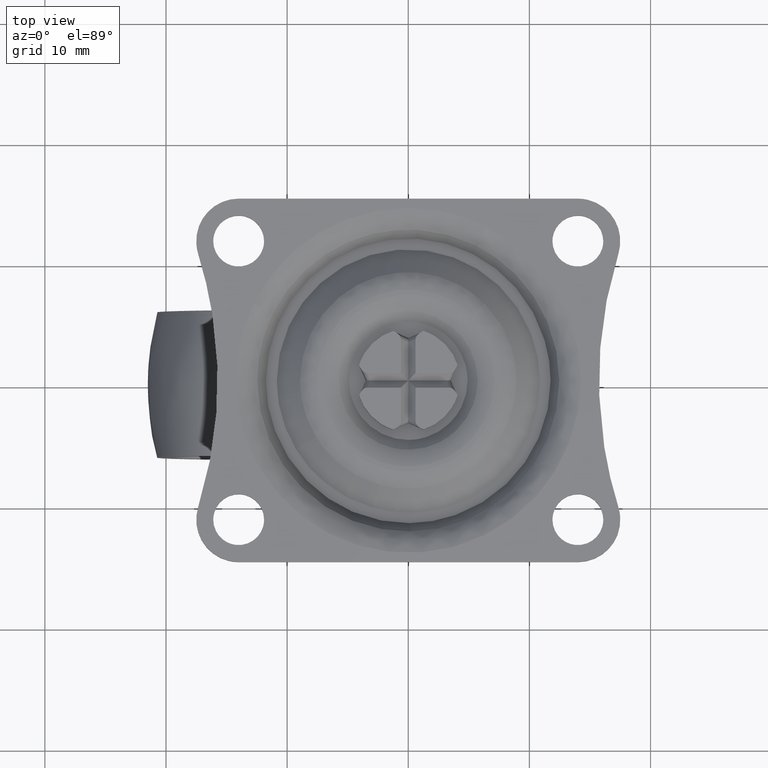
[diagram: clean part render]
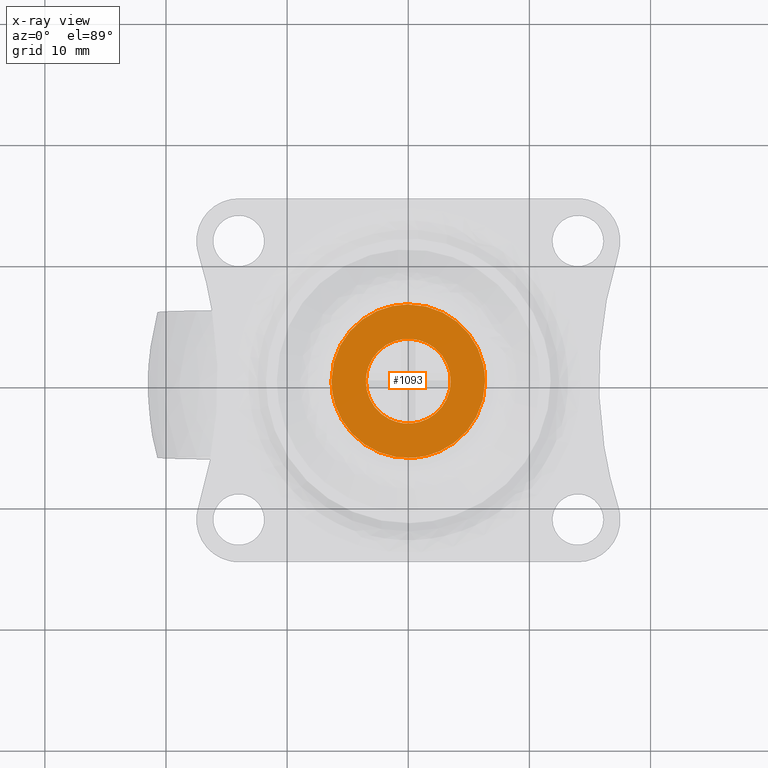
[diagram: x-ray — body ghosted, one internal face saturated and labeled with its STEP entity id]
A machine part, top view, then the same camera in x-ray: the body is ghosted and one INTERNAL B-rep face — a face not visible from any outside direction — is saturated and labeled: STEP entity #1093.
In plain terms, the highlighted face is a freeform B-spline surface patch.
Its self-contained STEP definition (entity closure, byte-faithful):
#89=CARTESIAN_POINT('',(-0.413119821335362,-3.475533342268469,-4.499998000000000));
#90=VERTEX_POINT('',#89);
#96=CARTESIAN_POINT('',(3.500000000000004,0.0,-4.499998000000000));
#97=VERTEX_POINT('',#96);
#98=CARTESIAN_POINT('',(-0.413119821335362,-3.475533342268468,-4.499998000000000));
#99=CARTESIAN_POINT('',(-0.207284418818780,-3.500000000000000,-4.499998000000000));
#100=CARTESIAN_POINT('',(3.552714E-015,-3.500000000000000,-4.499998000000000));
#101=CARTESIAN_POINT('',(3.500000000000003,-3.500000000000000,-4.499998000000000));
#102=CARTESIAN_POINT('',(3.500000000000004,0.0,-4.499998000000000));
#110=(BOUNDED_CURVE()B_SPLINE_CURVE(2,(#98,#99,#100,#101,#102),.UNSPECIFIED.,.F.,.U.)B_SPLINE_CURVE_WITH_KNOTS((3,2,3),(0.229562473512074,0.250000000000000,0.500000000000000),.UNSPECIFIED.)CURVE()GEOMETRIC_REPRESENTATION_ITEM()RATIONAL_B_SPLINE_CURVE((0.956026754180888,0.976055948329465,1.0,0.707106781186547,1.0))REPRESENTATION_ITEM(''));
#111=EDGE_CURVE('',#90,#97,#110,.T.);
#113=CARTESIAN_POINT('',(0.213663693666748,3.493472173349913,-4.499998000000000));
#114=VERTEX_POINT('',#113);
#115=CARTESIAN_POINT('',(3.500000000000004,0.0,-4.499998000000000));
#116=CARTESIAN_POINT('',(3.500000000000003,3.292477083370504,-4.499998000000000));
#117=CARTESIAN_POINT('',(0.213663693666748,3.493472173349913,-4.499998000000000));
#125=(BOUNDED_CURVE()B_SPLINE_CURVE(2,(#115,#116,#117),.UNSPECIFIED.,.F.,.U.)B_SPLINE_CURVE_WITH_KNOTS((3,3),(0.500000000000000,0.739333268206010),.UNSPECIFIED.)CURVE()GEOMETRIC_REPRESENTATION_ITEM()RATIONAL_B_SPLINE_CURVE((1.0,0.719603634823994,0.976072697413263))REPRESENTATION_ITEM(''));
#126=EDGE_CURVE('',#97,#114,#125,.T.);
#200=CARTESIAN_POINT('',(-3.499999999999996,0.0,-4.499998000000000));
#201=VERTEX_POINT('',#200);
#202=CARTESIAN_POINT('',(0.213663693666748,3.493472173349913,-4.499998000000000));
#203=CARTESIAN_POINT('',(0.106931565508182,3.500000000000000,-4.499998000000000));
#204=CARTESIAN_POINT('',(3.552714E-015,3.500000000000000,-4.499998000000000));
#205=CARTESIAN_POINT('',(-3.499999999999997,3.500000000000000,-4.499998000000000));
#206=CARTESIAN_POINT('',(-3.499999999999996,0.0,-4.499998000000000));
#214=(BOUNDED_CURVE()B_SPLINE_CURVE(2,(#202,#203,#204,#205,#206),.UNSPECIFIED.,.F.,.U.)B_SPLINE_CURVE_WITH_KNOTS((3,2,3),(0.739333268206010,0.750000000000000,1.0),.UNSPECIFIED.)CURVE()GEOMETRIC_REPRESENTATION_ITEM()RATIONAL_B_SPLINE_CURVE((0.976072697413263,0.987503146362554,1.0,0.707106781186547,1.0))REPRESENTATION_ITEM(''));
#215=EDGE_CURVE('',#114,#201,#214,.T.);
#217=CARTESIAN_POINT('',(-3.499999999999996,0.0,-4.499998000000000));
#218=CARTESIAN_POINT('',(-3.499999999999996,-3.108610840763653,-4.499998000000000));
#219=CARTESIAN_POINT('',(-0.413119821335362,-3.475533342268469,-4.499998000000000));
#227=(BOUNDED_CURVE()B_SPLINE_CURVE(2,(#217,#218,#219),.UNSPECIFIED.,.F.,.U.)B_SPLINE_CURVE_WITH_KNOTS((3,3),(0.0,0.229562473512074),.UNSPECIFIED.)CURVE()GEOMETRIC_REPRESENTATION_ITEM()RATIONAL_B_SPLINE_CURVE((1.0,0.731050832857083,0.956026754180888))REPRESENTATION_ITEM(''));
#228=EDGE_CURVE('',#201,#90,#227,.T.);
#859=CARTESIAN_POINT('',(0.442324476651971,-6.327651508868211,-4.499998000095522));
#860=VERTEX_POINT('',#859);
#861=CARTESIAN_POINT('',(-6.343092665217490,0.0,-4.499998000000000));
#862=VERTEX_POINT('',#861);
#863=CARTESIAN_POINT('',(0.442324476651971,-6.327651508868211,-4.499998000095522));
#864=CARTESIAN_POINT('',(0.221431756911988,-6.343092665217490,-4.499998000000001));
#865=CARTESIAN_POINT('',(0.0,-6.343092665217490,-4.499998000000000));
#866=CARTESIAN_POINT('',(-6.343092665217490,-6.343092665217490,-4.499998000000000));
#867=CARTESIAN_POINT('',(-6.343092665217490,0.0,-4.499998000000000));
#875=(BOUNDED_CURVE()B_SPLINE_CURVE(2,(#863,#864,#865,#866,#867),.UNSPECIFIED.,.F.,.U.)B_SPLINE_CURVE_WITH_KNOTS((3,2,3),(0.737833686532000,0.750000000000000,1.0),.UNSPECIFIED.)CURVE()GEOMETRIC_REPRESENTATION_ITEM()RATIONAL_B_SPLINE_CURVE((0.972879876380436,0.985746277149056,1.0,0.707106781186547,1.0))REPRESENTATION_ITEM(''));
#876=EDGE_CURVE('',#860,#862,#875,.T.);
#878=CARTESIAN_POINT('',(-0.079707555485368,6.342591841350579,-4.499998000100443));
#879=VERTEX_POINT('',#878);
#880=CARTESIAN_POINT('',(-6.343092665217490,0.0,-4.499998000000000));
#881=CARTESIAN_POINT('',(-6.343092665217490,6.263879679272330,-4.499997999999999));
#882=CARTESIAN_POINT('',(-0.079707555485368,6.342591841350579,-4.499998000100444));
#890=(BOUNDED_CURVE()B_SPLINE_CURVE(2,(#880,#881,#882),.UNSPECIFIED.,.F.,.U.)B_SPLINE_CURVE_WITH_KNOTS((3,3),(0.0,0.247784295917867),.UNSPECIFIED.)CURVE()GEOMETRIC_REPRESENTATION_ITEM()RATIONAL_B_SPLINE_CURVE((1.0,0.709702639988763,0.994854295635126))REPRESENTATION_ITEM(''));
#891=EDGE_CURVE('',#862,#879,#890,.T.);
#993=CARTESIAN_POINT('',(6.343092665217490,0.0,-4.499998000000000));
#994=VERTEX_POINT('',#993);
#995=CARTESIAN_POINT('',(6.343092665217490,0.0,-4.499998000000000));
#996=CARTESIAN_POINT('',(6.343092665217490,-5.915167635833891,-4.499998000000000));
#997=CARTESIAN_POINT('',(0.442324476651971,-6.327651508868211,-4.499998000095522));
#1005=(BOUNDED_CURVE()B_SPLINE_CURVE(2,(#995,#996,#997),.UNSPECIFIED.,.F.,.U.)B_SPLINE_CURVE_WITH_KNOTS((3,3),(0.500000000000000,0.737833686532001),.UNSPECIFIED.)CURVE()GEOMETRIC_REPRESENTATION_ITEM()RATIONAL_B_SPLINE_CURVE((1.0,0.721360504037491,0.972879876380438))REPRESENTATION_ITEM(''));
#1006=EDGE_CURVE('',#994,#860,#1005,.T.);
#1040=CARTESIAN_POINT('',(-0.079707555485368,6.342591841350579,-4.499998000100443));
#1041=CARTESIAN_POINT('',(-0.039855351182578,6.343092665217490,-4.499998000000000));
#1042=CARTESIAN_POINT('',(0.0,6.343092665217490,-4.499998000000000));
#1043=CARTESIAN_POINT('',(6.343092665217490,6.343092665217490,-4.499998000000000));
#1044=CARTESIAN_POINT('',(6.343092665217490,0.0,-4.499998000000000));
#1052=(BOUNDED_CURVE()B_SPLINE_CURVE(2,(#1040,#1041,#1042,#1043,#1044),.UNSPECIFIED.,.F.,.U.)B_SPLINE_CURVE_WITH_KNOTS((3,2,3),(0.247784295917867,0.250000000000000,0.500000000000000),.UNSPECIFIED.)CURVE()GEOMETRIC_REPRESENTATION_ITEM()RATIONAL_B_SPLINE_CURVE((0.994854295635126,0.997404141197784,1.0,0.707106781186547,1.0))REPRESENTATION_ITEM(''));
#1053=EDGE_CURVE('',#879,#994,#1052,.T.);
#1076=CARTESIAN_POINT('',(-6.976767314382800,-6.975982883036263,-4.499998000000000));
#1077=CARTESIAN_POINT('',(6.976766974112795,-6.975982883036263,-4.499998000000000));
#1078=CARTESIAN_POINT('',(-6.976767314382800,6.976205956437718,-4.499998000000000));
#1079=CARTESIAN_POINT('',(6.976766974112795,6.976205956437718,-4.499998000000000));
#1080=B_SPLINE_SURFACE_WITH_KNOTS('',1,1,((#1076,#1078),(#1077,#1079)),.UNSPECIFIED.,.F.,.F.,.U.,(2,2),(2,2),(0.0,13.953534288495600),(0.0,13.952188839473980),.UNSPECIFIED.);
#1081=ORIENTED_EDGE('',*,*,#876,.F.);
#1082=ORIENTED_EDGE('',*,*,#1006,.F.);
#1083=ORIENTED_EDGE('',*,*,#1053,.F.);
#1084=ORIENTED_EDGE('',*,*,#891,.F.);
#1085=EDGE_LOOP('',(#1081,#1082,#1083,#1084));
#1086=FACE_OUTER_BOUND('',#1085,.T.);
#1087=ORIENTED_EDGE('',*,*,#126,.F.);
#1088=ORIENTED_EDGE('',*,*,#111,.F.);
#1089=ORIENTED_EDGE('',*,*,#228,.F.);
#1090=ORIENTED_EDGE('',*,*,#215,.F.);
#1091=EDGE_LOOP('',(#1087,#1088,#1089,#1090));
#1092=FACE_BOUND('',#1091,.T.);
#1093=ADVANCED_FACE('',(#1086,#1092),#1080,.T.);